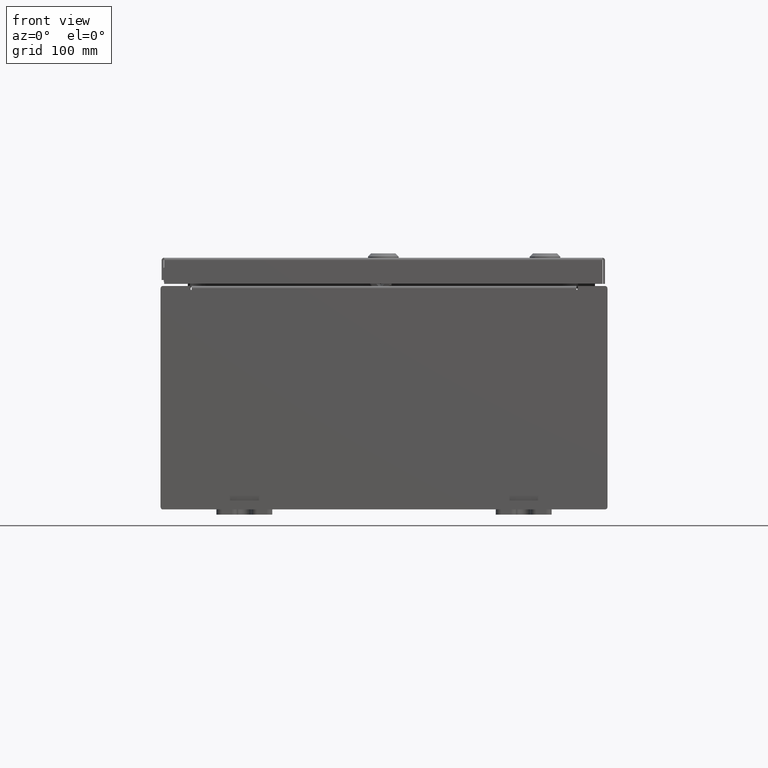
[diagram: clean part render]
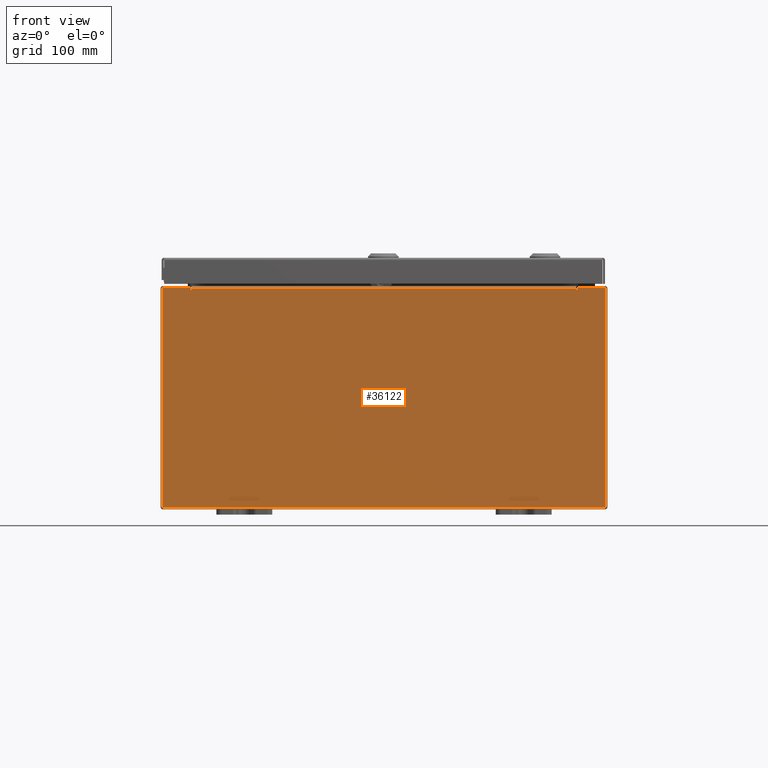
[diagram: same view with one face highlighted and labeled with its STEP entity id]
A machine part, front view. The second image highlights one B-rep face of the part: STEP entity #36122.
In plain terms, the highlighted planar face has unit normal (-0, 1, -0).
Its self-contained STEP definition (entity closure, byte-faithful):
#97 = CARTESIAN_POINT ( 'NONE',  ( -6.905874999999998200, 0.0000000000000000000, 3.874949999999999200 ) ) ;
#197 = DIRECTION ( 'NONE',  ( 1.000000000000000000, 0.0000000000000000000, 0.0000000000000000000 ) ) ;
#423 = DIRECTION ( 'NONE',  ( 0.0000000000000000000, -1.000000000000000000, 0.0000000000000000000 ) ) ;
#1301 = AXIS2_PLACEMENT_3D ( 'NONE', #40764, #11841, #45594 ) ;
#2902 = DIRECTION ( 'NONE',  ( 0.0000000000000000000, 0.0000000000000000000, -1.000000000000000000 ) ) ;
#4013 = EDGE_CURVE ( 'NONE', #38457, #49664, #60117, .T. ) ;
#4393 = ORIENTED_EDGE ( 'NONE', *, *, #11165, .F. ) ;
#4713 = DIRECTION ( 'NONE',  ( 1.000000000000000000, 0.0000000000000000000, 0.0000000000000000000 ) ) ;
#4908 = ORIENTED_EDGE ( 'NONE', *, *, #42395, .F. ) ;
#4922 = DIRECTION ( 'NONE',  ( 0.0000000000000000000, 0.0000000000000000000, -1.000000000000000000 ) ) ;
#5220 = VECTOR ( 'NONE', #36421, 39.37007874015748100 ) ;
#5226 = CARTESIAN_POINT ( 'NONE',  ( -7.925300000000000000, 0.0000000000000000000, 3.925299999999999100 ) ) ;
#6993 = ORIENTED_EDGE ( 'NONE', *, *, #4013, .F. ) ;
#8403 = LINE ( 'NONE', #11636, #21245 ) ;
#8668 = LINE ( 'NONE', #49689, #20024 ) ;
#9053 = CARTESIAN_POINT ( 'NONE',  ( 7.925300000000000000, 0.0000000000000000000, -3.925300000000000500 ) ) ;
#9833 = ORIENTED_EDGE ( 'NONE', *, *, #17710, .T. ) ;
#10478 = EDGE_CURVE ( 'NONE', #55941, #49664, #53760, .T. ) ;
#11165 = EDGE_CURVE ( 'NONE', #27419, #26148, #8403, .T. ) ;
#11636 = CARTESIAN_POINT ( 'NONE',  ( 6.924549999999831200, -0.0000000000000000000, -3.005651324651812500E-013 ) ) ;
#11841 = DIRECTION ( 'NONE',  ( -0.0000000000000000000, 1.000000000000000000, -0.0000000000000000000 ) ) ;
#12421 = CARTESIAN_POINT ( 'NONE',  ( 7.925300000000000000, 0.0000000000000000000, 3.925299999999999100 ) ) ;
#13409 = LINE ( 'NONE', #5226, #61698 ) ;
#15349 = CIRCLE ( 'NONE', #30900, 0.01867500000000003900 ) ;
#16502 = EDGE_CURVE ( 'NONE', #27419, #54020, #13409, .T. ) ;
#17398 = VERTEX_POINT ( 'NONE', #24749 ) ;
#17710 = EDGE_CURVE ( 'NONE', #17398, #52868, #8668, .T. ) ;
#20024 = VECTOR ( 'NONE', #54547, 39.37007874015748100 ) ;
#20097 = EDGE_CURVE ( 'NONE', #52868, #24465, #36499, .T. ) ;
#20708 = ORIENTED_EDGE ( 'NONE', *, *, #42044, .F. ) ;
#21028 = CARTESIAN_POINT ( 'NONE',  ( -6.924549999999999100, 0.0000000000000000000, 3.925299999999999100 ) ) ;
#21198 = VERTEX_POINT ( 'NONE', #9053 ) ;
#21245 = VECTOR ( 'NONE', #59934, 39.37007874015748100 ) ;
#24424 = PLANE ( 'NONE',  #42334 ) ;
#24465 = VERTEX_POINT ( 'NONE', #21028 ) ;
#24538 = CARTESIAN_POINT ( 'NONE',  ( -7.925300000000000000, 0.0000000000000000000, -3.925300000000000500 ) ) ;
#24749 = CARTESIAN_POINT ( 'NONE',  ( -7.925300000000000000, 0.0000000000000000000, -3.925300000000000500 ) ) ;
#26148 = VERTEX_POINT ( 'NONE', #26701 ) ;
#26210 = ORIENTED_EDGE ( 'NONE', *, *, #53258, .F. ) ;
#26701 = CARTESIAN_POINT ( 'NONE',  ( 6.924550000000000000, 0.0000000000000000000, 3.874949999999999200 ) ) ;
#27419 = VERTEX_POINT ( 'NONE', #44845 ) ;
#27486 = VERTEX_POINT ( 'NONE', #55198 ) ;
#27708 = CARTESIAN_POINT ( 'NONE',  ( -6.887199999999998200, -1.707404996040164500E-016, 3.912299999999999200 ) ) ;
#28132 = CARTESIAN_POINT ( 'NONE',  ( 7.925300000000000000, 0.0000000000000000000, 3.925299999999999100 ) ) ;
#28688 = VECTOR ( 'NONE', #4713, 39.37007874015748100 ) ;
#28998 = CARTESIAN_POINT ( 'NONE',  ( 6.887199999999998200, 0.0000000000000000000, 3.874949999999999200 ) ) ;
#29269 = CARTESIAN_POINT ( 'NONE',  ( 0.0000000000000000000, 0.0000000000000000000, 0.0000000000000000000 ) ) ;
#30900 = AXIS2_PLACEMENT_3D ( 'NONE', #97, #33817, #4922 ) ;
#30908 = CIRCLE ( 'NONE', #1301, 0.01867500000000003900 ) ;
#32644 = VECTOR ( 'NONE', #2902, 39.37007874015748100 ) ;
#33817 = DIRECTION ( 'NONE',  ( -0.0000000000000000000, 1.000000000000000000, -0.0000000000000000000 ) ) ;
#34146 = DIRECTION ( 'NONE',  ( 0.0000000000000000000, -0.0000000000000000000, -1.000000000000000000 ) ) ;
#34689 = LINE ( 'NONE', #43996, #46048 ) ;
#36122 = ADVANCED_FACE ( 'NONE', ( #40316 ), #24424, .F. ) ;
#36421 = DIRECTION ( 'NONE',  ( 0.0000000000000000000, 0.0000000000000000000, -1.000000000000000000 ) ) ;
#36499 = LINE ( 'NONE', #43720, #44774 ) ;
#36838 = ORIENTED_EDGE ( 'NONE', *, *, #42394, .T. ) ;
#37792 = ORIENTED_EDGE ( 'NONE', *, *, #47077, .F. ) ;
#38457 = VERTEX_POINT ( 'NONE', #28998 ) ;
#39702 = VERTEX_POINT ( 'NONE', #51822 ) ;
#40316 = FACE_OUTER_BOUND ( 'NONE', #58087, .T. ) ;
#40764 = CARTESIAN_POINT ( 'NONE',  ( 6.905874999999999100, 0.0000000000000000000, 3.874949999999999200 ) ) ;
#41340 = CARTESIAN_POINT ( 'NONE',  ( 6.887200000000000000, 0.0000000000000000000, 3.912299999999999200 ) ) ;
#41968 = ORIENTED_EDGE ( 'NONE', *, *, #20097, .T. ) ;
#42044 = EDGE_CURVE ( 'NONE', #26148, #38457, #30908, .T. ) ;
#42334 = AXIS2_PLACEMENT_3D ( 'NONE', #29269, #423, #34146 ) ;
#42394 = EDGE_CURVE ( 'NONE', #21198, #17398, #61896, .T. ) ;
#42395 = EDGE_CURVE ( 'NONE', #39702, #24465, #34689, .T. ) ;
#43720 = CARTESIAN_POINT ( 'NONE',  ( -7.925300000000000000, 0.0000000000000000000, 3.925299999999999100 ) ) ;
#43996 = CARTESIAN_POINT ( 'NONE',  ( -6.924549999999999100, -0.0000000000000000000, 0.0000000000000000000 ) ) ;
#44774 = VECTOR ( 'NONE', #58253, 39.37007874015748100 ) ;
#44845 = CARTESIAN_POINT ( 'NONE',  ( 6.924550000000000000, 0.0000000000000000000, 3.925299999999999100 ) ) ;
#44872 = ORIENTED_EDGE ( 'NONE', *, *, #47754, .T. ) ;
#45272 = LINE ( 'NONE', #50976, #5220 ) ;
#45509 = LINE ( 'NONE', #12421, #32644 ) ;
#45594 = DIRECTION ( 'NONE',  ( 0.0000000000000000000, 0.0000000000000000000, -1.000000000000000000 ) ) ;
#46048 = VECTOR ( 'NONE', #48860, 39.37007874015748100 ) ;
#46418 = CARTESIAN_POINT ( 'NONE',  ( -7.925300000000000000, 0.0000000000000000000, 3.925299999999999100 ) ) ;
#47077 = EDGE_CURVE ( 'NONE', #27486, #39702, #15349, .T. ) ;
#47556 = VECTOR ( 'NONE', #48654, 39.37007874015748100 ) ;
#47754 = EDGE_CURVE ( 'NONE', #54020, #21198, #45509, .T. ) ;
#48369 = DIRECTION ( 'NONE',  ( 0.0000000000000000000, 0.0000000000000000000, 1.000000000000000000 ) ) ;
#48574 = ORIENTED_EDGE ( 'NONE', *, *, #10478, .T. ) ;
#48654 = DIRECTION ( 'NONE',  ( -1.000000000000000000, -0.0000000000000000000, -0.0000000000000000000 ) ) ;
#48860 = DIRECTION ( 'NONE',  ( 0.0000000000000000000, 0.0000000000000000000, 1.000000000000000000 ) ) ;
#49664 = VERTEX_POINT ( 'NONE', #41340 ) ;
#49689 = CARTESIAN_POINT ( 'NONE',  ( -7.925300000000000000, 0.0000000000000000000, 3.925299999999999100 ) ) ;
#50976 = CARTESIAN_POINT ( 'NONE',  ( -6.887199999999998200, -0.0000000000000000000, 0.0000000000000000000 ) ) ;
#51822 = CARTESIAN_POINT ( 'NONE',  ( -6.924549999999997300, 0.0000000000000000000, 3.874949999999999200 ) ) ;
#52868 = VERTEX_POINT ( 'NONE', #46418 ) ;
#53258 = EDGE_CURVE ( 'NONE', #55941, #27486, #45272, .T. ) ;
#53760 = LINE ( 'NONE', #57674, #28688 ) ;
#54020 = VERTEX_POINT ( 'NONE', #28132 ) ;
#54547 = DIRECTION ( 'NONE',  ( -0.0000000000000000000, -0.0000000000000000000, 1.000000000000000000 ) ) ;
#55198 = CARTESIAN_POINT ( 'NONE',  ( -6.887199999999998200, -0.0000000000000000000, 3.874949999999999200 ) ) ;
#55941 = VERTEX_POINT ( 'NONE', #27708 ) ;
#56419 = ORIENTED_EDGE ( 'NONE', *, *, #16502, .T. ) ;
#57269 = CARTESIAN_POINT ( 'NONE',  ( 6.887200000000000000, 0.0000000000000000000, 0.0000000000000000000 ) ) ;
#57674 = CARTESIAN_POINT ( 'NONE',  ( -6.887200000000000000, -1.707404996040164500E-016, 3.912299999999999200 ) ) ;
#58087 = EDGE_LOOP ( 'NONE', ( #4908, #37792, #26210, #48574, #6993, #20708, #4393, #56419, #44872, #36838, #9833, #41968 ) ) ;
#58253 = DIRECTION ( 'NONE',  ( 1.000000000000000000, 0.0000000000000000000, 0.0000000000000000000 ) ) ;
#58561 = VECTOR ( 'NONE', #48369, 39.37007874015748100 ) ;
#59934 = DIRECTION ( 'NONE',  ( -4.340572780400004900E-014, 0.0000000000000000000, -1.000000000000000000 ) ) ;
#60117 = LINE ( 'NONE', #57269, #58561 ) ;
#61698 = VECTOR ( 'NONE', #197, 39.37007874015748100 ) ;
#61896 = LINE ( 'NONE', #24538, #47556 ) ;